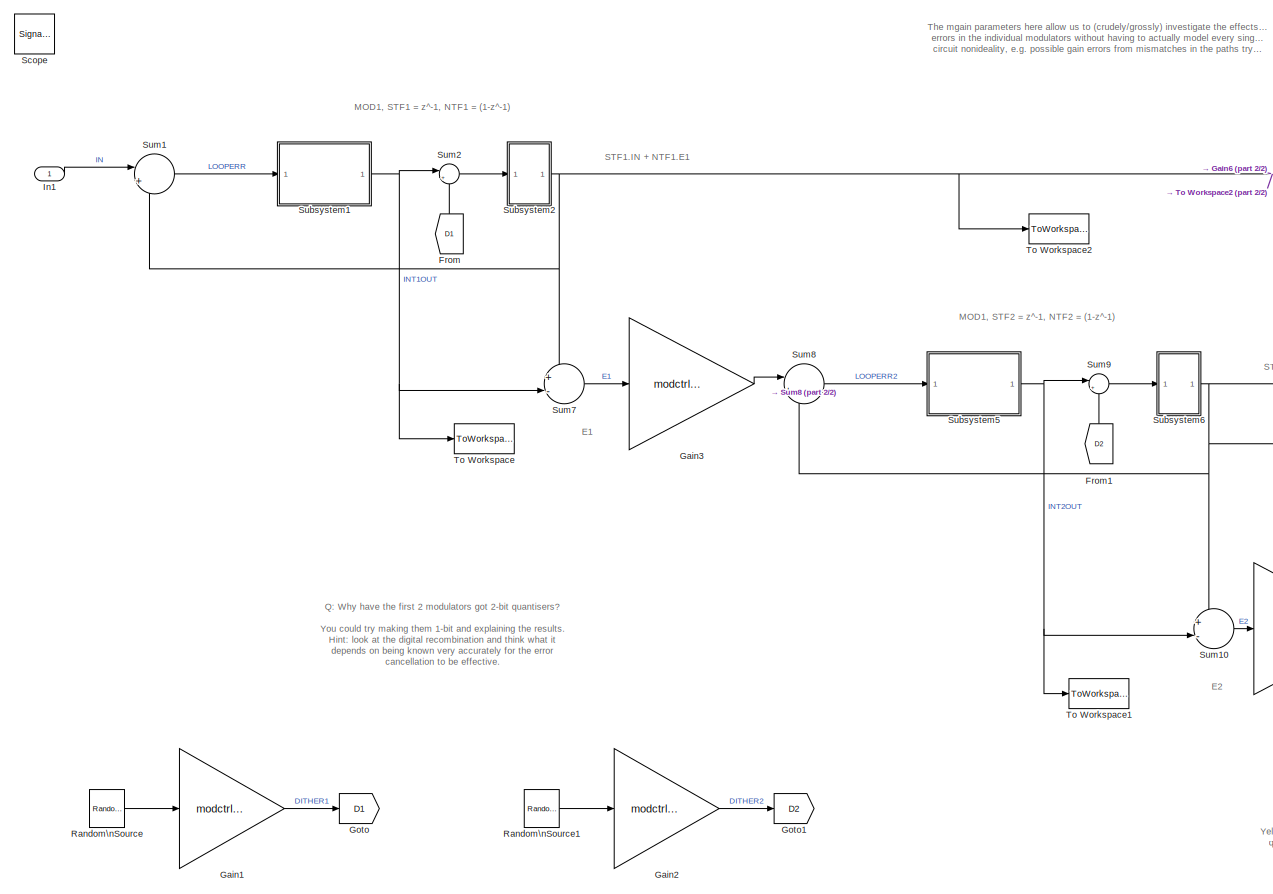
[diagram: root canvas - part 1/2, left side, full height]
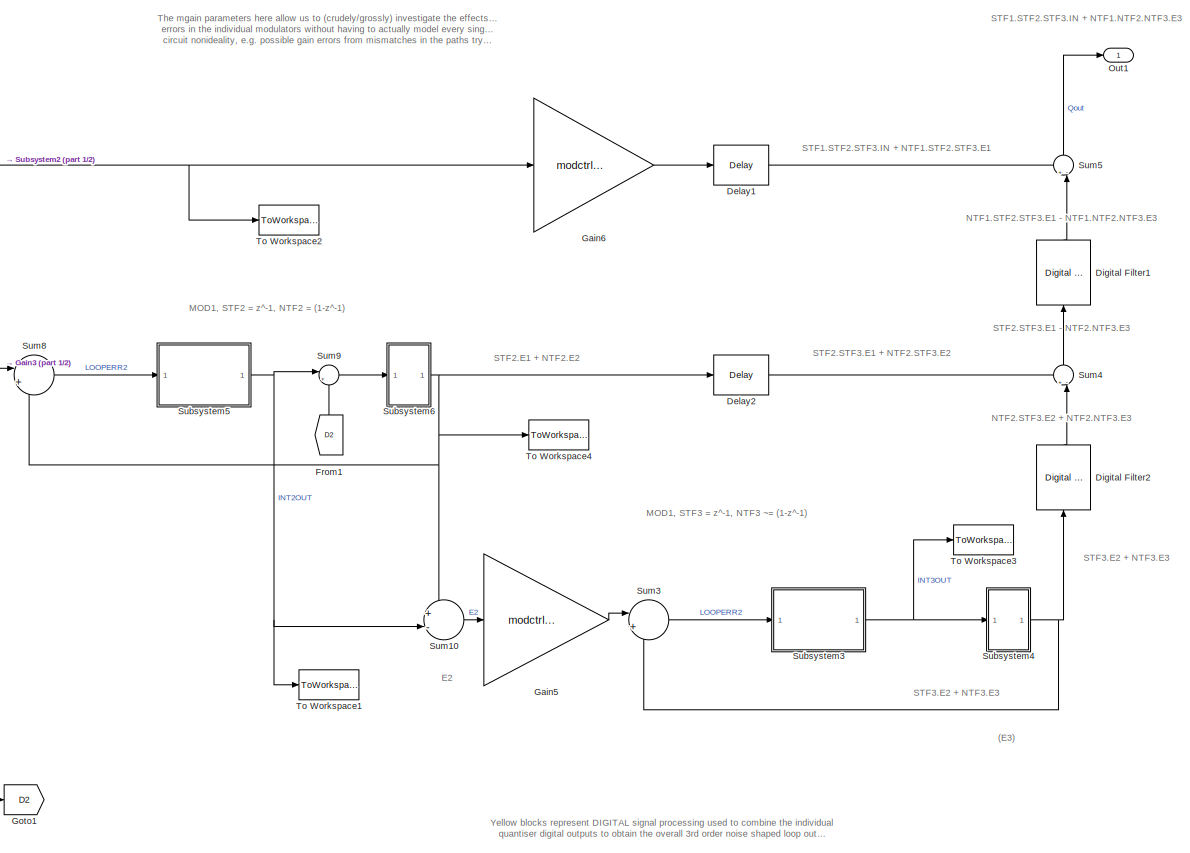
[diagram: root canvas - part 2/2, right side, full height]
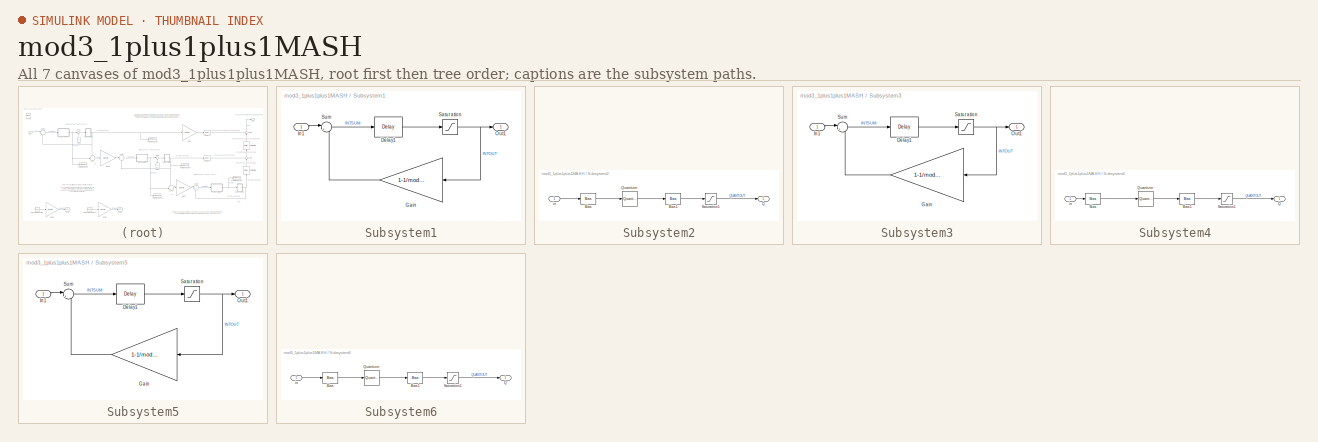
[diagram: thumbnail index - all 7 canvases of the model, root first then tree order]
MODEL mod3_1plus1plus1MASH
KIND model
BLOCK [Reference] Delay1  REF=dspsigops/Delay
  AttributesFormatString = STF2.STF3
  InputProcessing = Columns as channels (frame based)
  Ports = [1, 1]
  SID = 189
  SourceBlock = dspsigops/Delay
  SourceType = Delay
  UserData = DataTag0
  UserDataPersistent = on
  delay = 2
  dif_ic_for_ch = off
  dif_ic_for_dly = off
  dly_unit = Samples
  ic = 0
  ic_detail = off
  reset_popup = None
BLOCK [Reference] Delay2  REF=dspsigops/Delay
  AttributesFormatString = STF3
  InputProcessing = Columns as channels (frame based)
  Ports = [1, 1]
  SID = 184
  SourceBlock = dspsigops/Delay
  SourceType = Delay
  UserData = DataTag1
  UserDataPersistent = on
  delay = 1
  dif_ic_for_ch = off
  dif_ic_for_dly = off
  dly_unit = Samples
  ic = 0
  ic_detail = off
  reset_popup = None
BLOCK [Reference] Digital Filter1  REF=dsparch4/Digital Filter
  AllPoleFiltStruct = Direct form
  AttributesFormatString = NTF1 = (1-z^-1)
  BiQuadCoeffs = [1 0.3 0.4 1 0.1 0.2]
  CoeffSource = Specify via dialog
  DenCoeffs = [1 0.1]
  FIRFiltStruct = Direct form
  FiltPerSampPopup = One filter per frame
  FilterSource = Specify via dialog
  IC = 0
  ICden = 0
  ICnum = 0
  IIRFiltStruct = Direct form II transposed
  InputProcessing = Columns as channels (frame based)
  LatticeCoeffs = [0.2 0.4]
  LockScale = off
  NumCoeffs = [1 -1]
  Ports = [1, 1]
  SID = 190
  ScaleValues = 1
  SourceBlock = dsparch4/Digital Filter
  SourceType = Digital Filter
  TypePopup = FIR (all zeros)
  UserData = DataTag2
  UserDataPersistent = on
  accumFracLength = 30
  accumMode = Same as product output
  accumWordLength = 32
  additionalParams = off
  allowOverrides = on
  denIgnore = on
  dfiltObjectName = dfilt.dffir([1 2 1])
  firstCoeffFracLength = 15
  firstCoeffMode = Same word length as input
  firstCoeffWordLength = 16
  memoryFracLength = 15
  memoryMode = Same as accumulator
  memoryWordLength = 16
  multiplicandFracLength = 30
  multiplicandMode = Same as output
  multiplicandWordLength = 32
  outputFracLength = 15
  outputMode = Same as accumulator
  outputWordLength = 16
  overflowMode = off
  prodOutputFracLength = 30
  prodOutputMode = Same as input
  prodOutputWordLength = 32
  roundingMode = Floor
  scaleValueFracLength = 14
  secondCoeffFracLength = 15
  secondCoeffMode = Same as numerator
  secondCoeffWordLength = 16
  showAcc = off
  showCoeff = off
  showMem = off
  showMpy = off
  showOut = off
  stageIOMode = Same as input
  stageIOWordLength = 16
  stageInFracLength = 15
  stageOutFracLength = 15
  tapSumFracLength = 30
  tapSumMode = Same as input
  tapSumWordLength = 32
  thirdCoeffFracLength = 15
  thirdCoeffMode = Same as input
  thirdCoeffWordLength = 16
BLOCK [Reference] Digital Filter2  REF=dsparch4/Digital Filter
  AllPoleFiltStruct = Direct form
  AttributesFormatString = NTF2 = (1-z^-1)
  BiQuadCoeffs = [1 0.3 0.4 1 0.1 0.2]
  CoeffSource = Specify via dialog
  DenCoeffs = [1 0.1]
  FIRFiltStruct = Direct form
  FiltPerSampPopup = One filter per frame
  FilterSource = Specify via dialog
  IC = 0
  ICden = 0
  ICnum = 0
  IIRFiltStruct = Direct form II transposed
  InputProcessing = Columns as channels (frame based)
  LatticeCoeffs = [0.2 0.4]
  LockScale = off
  NumCoeffs = [1 -1]
  Ports = [1, 1]
  SID = 183
  ScaleValues = 1
  SourceBlock = dsparch4/Digital Filter
  SourceType = Digital Filter
  TypePopup = FIR (all zeros)
  UserData = DataTag3
  UserDataPersistent = on
  accumFracLength = 30
  accumMode = Same as product output
  accumWordLength = 32
  additionalParams = off
  allowOverrides = on
  denIgnore = on
  dfiltObjectName = dfilt.dffir([1 2 1])
  firstCoeffFracLength = 15
  firstCoeffMode = Same word length as input
  firstCoeffWordLength = 16
  memoryFracLength = 15
  memoryMode = Same as accumulator
  memoryWordLength = 16
  multiplicandFracLength = 30
  multiplicandMode = Same as output
  multiplicandWordLength = 32
  outputFracLength = 15
  outputMode = Same as accumulator
  outputWordLength = 16
  overflowMode = off
  prodOutputFracLength = 30
  prodOutputMode = Same as input
  prodOutputWordLength = 32
  roundingMode = Floor
  scaleValueFracLength = 14
  secondCoeffFracLength = 15
  secondCoeffMode = Same as numerator
  secondCoeffWordLength = 16
  showAcc = off
  showCoeff = off
  showMem = off
  showMpy = off
  showOut = off
  stageIOMode = Same as input
  stageIOWordLength = 16
  stageInFracLength = 15
  stageOutFracLength = 15
  tapSumFracLength = 30
  tapSumMode = Same as input
  tapSumWordLength = 32
  thirdCoeffFracLength = 15
  thirdCoeffMode = Same as input
  thirdCoeffWordLength = 16
BLOCK [From] From
  GotoTag = D1
  SID = 207
BLOCK [From] From1
  GotoTag = D2
  SID = 208
BLOCK [Gain] Gain1
  AttributesFormatString = Dither level adjust
  Gain = modctrl.dgain1
  OutDataTypeStr = Inherit: Inherit via internal rule
  ParamDataTypeStr = Inherit: Inherit via internal rule
  SID = 29
  SaturateOnIntegerOverflow = off
BLOCK [Gain] Gain2
  AttributesFormatString = Dither level adjust
  Gain = modctrl.dgain2
  OutDataTypeStr = Inherit: Inherit via internal rule
  ParamDataTypeStr = Inherit: Inherit via internal rule
  SID = 110
  SaturateOnIntegerOverflow = off
BLOCK [Gain] Gain3
  Gain = modctrl.mgain2
  OutDataTypeStr = Inherit: Inherit via internal rule
  ParamDataTypeStr = Inherit: Inherit via internal rule
  SID = 217
  SaturateOnIntegerOverflow = off
BLOCK [Gain] Gain5
  Gain = modctrl.mgain3
  OutDataTypeStr = Inherit: Inherit via internal rule
  ParamDataTypeStr = Inherit: Inherit via internal rule
  SID = 218
  SaturateOnIntegerOverflow = off
BLOCK [Gain] Gain6
  Gain = modctrl.mgain1
  OutDataTypeStr = Inherit: Inherit via internal rule
  ParamDataTypeStr = Inherit: Inherit via internal rule
  SID = 188
  SaturateOnIntegerOverflow = off
BLOCK [Goto] Goto
  GotoTag = D1
  SID = 205
BLOCK [Goto] Goto1
  GotoTag = D2
  SID = 206
BLOCK [Inport] In1
  IconDisplay = Port number
  SID = 73
BLOCK [Outport] Out1
  IconDisplay = Port number
  SID = 74
BLOCK [Reference] Random\nSource  REF=dspsrcs4/Random\nSource
  AttributesFormatString = Dither source
  CltLength = 12
  DataType = Double
  IsInherit = off
  MaxVal = 1
  MeanVal = 0
  MinVal = -1
  NormMethod = Ziggurat
  OutComplex = Real
  Ports = [0, 1]
  RepMode = Not repeatable
  SID = 25
  SampFrame = 1
  SampMode = Discrete
  SampTime = 1/Fs
  SourceBlock = dspsrcs4/Random\nSource
  SourceType = Random Source
  SrcType = Uniform
  UserData = DataTag4
  UserDataPersistent = on
  VarVal = 1
  rawSeed = 1
BLOCK [Reference] Random\nSource1  REF=dspsrcs4/Random\nSource
  AttributesFormatString = Dither source
  CltLength = 12
  DataType = Double
  IsInherit = off
  MaxVal = 1
  MeanVal = 0
  MinVal = -1
  NormMethod = Ziggurat
  OutComplex = Real
  Ports = [0, 1]
  RepMode = Not repeatable
  SID = 111
  SampFrame = 1
  SampMode = Discrete
  SampTime = 1/Fs
  SourceBlock = dspsrcs4/Random\nSource
  SourceType = Random Source
  SrcType = Uniform
  UserData = DataTag5
  UserDataPersistent = on
  VarVal = 1
  rawSeed = 1
BLOCK [SignalViewerScope] Scope
  IOType = viewer
  MaxDataPoints = 7500
  NumInputPorts = 4
  Ports = []
  RefreshTime = 0.035000
  SID = 216
  ShowDataMarkers = off
  ShowLegends = off
  YMax = 1.25~0.75~1.5~7.5
  YMin = -1.25~-0.75~-1.5~-7.5
  ZoomMode = xonly
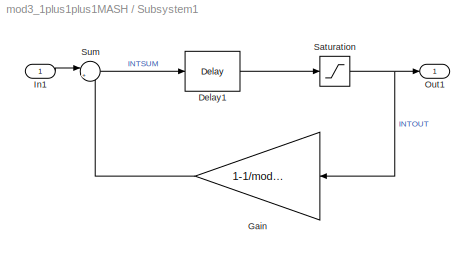
BLOCK [SubSystem] Subsystem1
  AttributesFormatString = Leaky delaying int
  FunctionWithSeparateData = off
  MaskHideContents = off
  MinAlgLoopOccurrences = off
  Opaque = off
  Ports = [1, 1]
  PropExecContextOutsideSubsystem = off
  RTWSystemCode = Auto
  RequestExecContextInheritance = off
  SID = 129
BLOCK [Reference] Subsystem1/Delay1  REF=dspsigops/Delay
  InputProcessing = Inherited (this choice will be removed - see release notes)
  Ports = [1, 1]
  SID = 131
  SourceBlock = dspsigops/Delay
  SourceType = Delay
  UserData = DataTag6
  UserDataPersistent = on
  delay = 1
  dif_ic_for_ch = off
  dif_ic_for_dly = off
  dly_unit = Samples
  ic = 0
  ic_detail = off
  reset_popup = None
BLOCK [Gain] Subsystem1/Gain
  AttributesFormatString = Integrator leakage
  Gain = 1-1/modctrl.igain1
  OutDataTypeStr = Inherit: Inherit via internal rule
  ParamDataTypeStr = Inherit: Inherit via internal rule
  SID = 132
  SaturateOnIntegerOverflow = off
BLOCK [Inport] Subsystem1/In1
  IconDisplay = Port number
  SID = 130
BLOCK [Outport] Subsystem1/Out1
  IconDisplay = Port number
  SID = 135
BLOCK [Saturate] Subsystem1/Saturation
  InputPortMap = u0
  LowerLimit = -(modctrl.isat1)
  Ports = [1, 1]
  SID = 133
  UpperLimit = modctrl.isat1
BLOCK [Sum] Subsystem1/Sum
  AttributesFormatString = Integrator summer
  IconShape = round
  InputSameDT = off
  Inputs = |++
  OutDataTypeStr = Inherit: Inherit via internal rule
  Ports = [2, 1]
  SID = 134
  SaturateOnIntegerOverflow = off
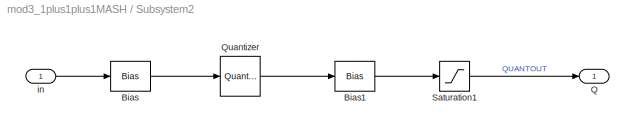
BLOCK [SubSystem] Subsystem2
  AttributesFormatString = 2-bit quantiser
  FunctionWithSeparateData = off
  MaskHideContents = off
  MinAlgLoopOccurrences = off
  Opaque = off
  Ports = [1, 1]
  PropExecContextOutsideSubsystem = off
  RTWSystemCode = Auto
  RequestExecContextInheritance = off
  SID = 196
BLOCK [Bias] Subsystem2/Bias
  AttributesFormatString = Need offset to give\\nMID-RISE quantiser
  Bias = 1/3
  SID = 198
  SaturateOnIntegerOverflow = off
BLOCK [Bias] Subsystem2/Bias1
  Bias = -1/3
  SID = 199
  SaturateOnIntegerOverflow = off
BLOCK [Outport] Subsystem2/Q
  IconDisplay = Port number
  SID = 203
BLOCK [Quantizer] Subsystem2/Quantizer
  LinearizeAsGain = off
  QuantizationInterval = 2/3
  SID = 201
BLOCK [Saturate] Subsystem2/Saturation1
  AttributesFormatString = Limit quantiser\\noutput to +/-1
  InputPortMap = u0
  LowerLimit = -1
  Ports = [1, 1]
  SID = 202
  UpperLimit = 1
BLOCK [Inport] Subsystem2/in
  IconDisplay = Port number
  SID = 197
BLOCK [SubSystem] Subsystem3
  AttributesFormatString = Leaky delaying int
  FunctionWithSeparateData = off
  MaskHideContents = off
  MinAlgLoopOccurrences = off
  Opaque = off
  Ports = [1, 1]
  PropExecContextOutsideSubsystem = off
  RTWSystemCode = Auto
  RequestExecContextInheritance = off
  SID = 165
BLOCK [Reference] Subsystem3/Delay1  REF=dspsigops/Delay
  InputProcessing = Inherited (this choice will be removed - see release notes)
  Ports = [1, 1]
  SID = 167
  SourceBlock = dspsigops/Delay
  SourceType = Delay
  UserData = DataTag7
  UserDataPersistent = on
  delay = 1
  dif_ic_for_ch = off
  dif_ic_for_dly = off
  dly_unit = Samples
  ic = 0
  ic_detail = off
  reset_popup = None
BLOCK [Gain] Subsystem3/Gain
  AttributesFormatString = Integrator leakage
  Gain = 1-1/modctrl.igain3
  OutDataTypeStr = Inherit: Inherit via internal rule
  ParamDataTypeStr = Inherit: Inherit via internal rule
  SID = 168
  SaturateOnIntegerOverflow = off
BLOCK [Inport] Subsystem3/In1
  IconDisplay = Port number
  SID = 166
BLOCK [Outport] Subsystem3/Out1
  IconDisplay = Port number
  SID = 171
BLOCK [Saturate] Subsystem3/Saturation
  InputPortMap = u0
  LowerLimit = -(modctrl.isat3)
  Ports = [1, 1]
  SID = 169
  UpperLimit = modctrl.isat3
BLOCK [Sum] Subsystem3/Sum
  AttributesFormatString = Integrator summer
  IconShape = round
  InputSameDT = off
  Inputs = |++
  OutDataTypeStr = Inherit: Inherit via internal rule
  Ports = [2, 1]
  SID = 170
  SaturateOnIntegerOverflow = off
BLOCK [SubSystem] Subsystem4
  AttributesFormatString = 1-bit quantiser
  FunctionWithSeparateData = off
  MaskHideContents = off
  MinAlgLoopOccurrences = off
  Opaque = off
  Ports = [1, 1]
  PropExecContextOutsideSubsystem = off
  RTWSystemCode = Auto
  RequestExecContextInheritance = off
  SID = 172
BLOCK [Bias] Subsystem4/Bias
  AttributesFormatString = Need offset to give\\nMID-RISE quantiser
  Bias = 1
  SID = 174
  SaturateOnIntegerOverflow = off
BLOCK [Bias] Subsystem4/Bias1
  Bias = -1
  SID = 175
  SaturateOnIntegerOverflow = off
BLOCK [Outport] Subsystem4/Q
  IconDisplay = Port number
  SID = 179
BLOCK [Quantizer] Subsystem4/Quantizer
  LinearizeAsGain = off
  QuantizationInterval = 2
  SID = 177
BLOCK [Saturate] Subsystem4/Saturation1
  AttributesFormatString = Limit quantiser\\noutput to +/-1
  InputPortMap = u0
  LowerLimit = -1
  Ports = [1, 1]
  SID = 178
  UpperLimit = 1
BLOCK [Inport] Subsystem4/in
  IconDisplay = Port number
  SID = 173
BLOCK [SubSystem] Subsystem5
  AttributesFormatString = Leaky delaying int
  FunctionWithSeparateData = off
  MaskHideContents = off
  MinAlgLoopOccurrences = off
  Opaque = off
  Ports = [1, 1]
  PropExecContextOutsideSubsystem = off
  RTWSystemCode = Auto
  RequestExecContextInheritance = off
  SID = 147
BLOCK [Reference] Subsystem5/Delay1  REF=dspsigops/Delay
  InputProcessing = Inherited (this choice will be removed - see release notes)
  Ports = [1, 1]
  SID = 149
  SourceBlock = dspsigops/Delay
  SourceType = Delay
  UserData = DataTag8
  UserDataPersistent = on
  delay = 1
  dif_ic_for_ch = off
  dif_ic_for_dly = off
  dly_unit = Samples
  ic = 0
  ic_detail = off
  reset_popup = None
BLOCK [Gain] Subsystem5/Gain
  AttributesFormatString = Integrator leakage
  Gain = 1-1/modctrl.igain2
  OutDataTypeStr = Inherit: Inherit via internal rule
  ParamDataTypeStr = Inherit: Inherit via internal rule
  SID = 150
  SaturateOnIntegerOverflow = off
BLOCK [Inport] Subsystem5/In1
  IconDisplay = Port number
  SID = 148
BLOCK [Outport] Subsystem5/Out1
  IconDisplay = Port number
  SID = 153
BLOCK [Saturate] Subsystem5/Saturation
  InputPortMap = u0
  LowerLimit = -(modctrl.isat2)
  Ports = [1, 1]
  SID = 151
  UpperLimit = modctrl.isat2
BLOCK [Sum] Subsystem5/Sum
  AttributesFormatString = Integrator summer
  IconShape = round
  InputSameDT = off
  Inputs = |++
  OutDataTypeStr = Inherit: Inherit via internal rule
  Ports = [2, 1]
  SID = 152
  SaturateOnIntegerOverflow = off
BLOCK [SubSystem] Subsystem6
  AttributesFormatString = 2-bit quantiser
  FunctionWithSeparateData = off
  MaskHideContents = off
  MinAlgLoopOccurrences = off
  Opaque = off
  Ports = [1, 1]
  PropExecContextOutsideSubsystem = off
  RTWSystemCode = Auto
  RequestExecContextInheritance = off
  SID = 209
BLOCK [Bias] Subsystem6/Bias
  AttributesFormatString = Need offset to give\\nMID-RISE quantiser
  Bias = 1/3
  SID = 211
  SaturateOnIntegerOverflow = off
BLOCK [Bias] Subsystem6/Bias1
  Bias = -1/3
  SID = 212
  SaturateOnIntegerOverflow = off
BLOCK [Outport] Subsystem6/Q
  IconDisplay = Port number
  SID = 215
BLOCK [Quantizer] Subsystem6/Quantizer
  LinearizeAsGain = off
  QuantizationInterval = 2/3
  SID = 213
BLOCK [Saturate] Subsystem6/Saturation1
  AttributesFormatString = Limit quantiser\\noutput to +/-1
  InputPortMap = u0
  LowerLimit = -1
  Ports = [1, 1]
  SID = 214
  UpperLimit = 1
BLOCK [Inport] Subsystem6/in
  IconDisplay = Port number
  SID = 210
BLOCK [Sum] Sum1
  AttributesFormatString = Modulator input\\nloop servo error (input - fbk)
  IconShape = round
  InputSameDT = off
  Inputs = |+-
  OutDataTypeStr = Inherit: Inherit via internal rule
  Ports = [2, 1]
  SID = 136
  SaturateOnIntegerOverflow = off
BLOCK [Sum] Sum10
  IconShape = round
  InputSameDT = off
  Inputs = +-|
  OutDataTypeStr = Inherit: Inherit via internal rule
  Ports = [2, 1]
  SID = 164
  SaturateOnIntegerOverflow = off
BLOCK [Sum] Sum2
  IconShape = round
  InputSameDT = off
  Inputs = |++
  OutDataTypeStr = Inherit: Inherit via internal rule
  Ports = [2, 1]
  SID = 137
  SaturateOnIntegerOverflow = off
BLOCK [Sum] Sum3
  AttributesFormatString = Modulator input\\nloop servo error (input - fbk)
  IconShape = round
  InputSameDT = off
  Inputs = |+-
  OutDataTypeStr = Inherit: Inherit via internal rule
  Ports = [2, 1]
  SID = 180
  SaturateOnIntegerOverflow = off
BLOCK [Sum] Sum4
  IconShape = round
  InputSameDT = off
  Inputs = +-|
  OutDataTypeStr = Inherit: Inherit via internal rule
  Ports = [2, 1]
  SID = 185
  SaturateOnIntegerOverflow = off
BLOCK [Sum] Sum5
  IconShape = round
  InputSameDT = off
  Inputs = +-|
  OutDataTypeStr = Inherit: Inherit via internal rule
  Ports = [2, 1]
  SID = 191
  SaturateOnIntegerOverflow = off
BLOCK [Sum] Sum7
  IconShape = round
  InputSameDT = off
  Inputs = +-|
  OutDataTypeStr = Inherit: Inherit via internal rule
  Ports = [2, 1]
  SID = 146
  SaturateOnIntegerOverflow = off
BLOCK [Sum] Sum8
  AttributesFormatString = Modulator input\\nloop servo error (input - fbk)
  IconShape = round
  InputSameDT = off
  Inputs = |+-
  OutDataTypeStr = Inherit: Inherit via internal rule
  Ports = [2, 1]
  SID = 162
  SaturateOnIntegerOverflow = off
BLOCK [Sum] Sum9
  IconShape = round
  InputSameDT = off
  Inputs = |++
  OutDataTypeStr = Inherit: Inherit via internal rule
  Ports = [2, 1]
  SID = 163
  SaturateOnIntegerOverflow = off
BLOCK [ToWorkspace] To Workspace
  MaxDataPoints = inf
  Ports = [1]
  SID = 219
  SampleTime = -1
  VariableName = INT1OUT
BLOCK [ToWorkspace] To Workspace1
  MaxDataPoints = inf
  Ports = [1]
  SID = 220
  SampleTime = -1
  VariableName = INT2OUT
BLOCK [ToWorkspace] To Workspace2
  MaxDataPoints = inf
  Ports = [1]
  SID = 224
  SampleTime = -1
  VariableName = Qout1
BLOCK [ToWorkspace] To Workspace3
  MaxDataPoints = inf
  Ports = [1]
  SID = 222
  SampleTime = -1
  VariableName = INT3OUT
BLOCK [ToWorkspace] To Workspace4
  MaxDataPoints = inf
  Ports = [1]
  SID = 244
  SampleTime = -1
  VariableName = Qout2
ANNOTATION (root): (E3)
ANNOTATION (root): E1
ANNOTATION (root): E2
ANNOTATION (root): MOD1, STF1 = z^-1, NTF1 = (1-z^-1)
ANNOTATION (root): MOD1, STF2 = z^-1, NTF2 = (1-z^-1)
ANNOTATION (root): MOD1, STF3 = z^-1, NTF3 ~= (1-z^-1)
ANNOTATION (root): NTF1.STF2.STF3.E1 - NTF1.NTF2.NTF3.E3
ANNOTATION (root): NTF2.STF3.E2 + NTF2.NTF3.E3
ANNOTATION (root): Q: Why have the first 2 modulators got 2-bit quantisers?\n\nYou could try making them 1-bit and explaining the results.\nHint: look at the digital recombination and think what it\ndepends on being known very accurately for the error\ncancellation to be effective.\nWhat might not be well defined with 1-bit quantisers?
ANNOTATION (root): STF1.IN + NTF1.E1
ANNOTATION (root): STF1.STF2.STF3.IN + NTF1.NTF2.NTF3.E3
ANNOTATION (root): STF1.STF2.STF3.IN + NTF1.STF2.STF3.E1
ANNOTATION (root): STF2.E1 + NTF2.E2
ANNOTATION (root): STF2.STF3.E1 + NTF2.STF3.E2
ANNOTATION (root): STF2.STF3.E1 - NTF2.NTF3.E3
ANNOTATION (root): STF3.E2 + NTF3.E3
ANNOTATION (root): The mgain parameters here allow us to (crudely/grossly) investigate the effects of signal path gain\nerrors in the individual modulators without having to actually model every single path and \ncircuit nonideality, e.g. possible gain errors from mismatches in the paths trying to compute E1, E2
ANNOTATION (root): Yellow blocks represent DIGITAL signal processing used to combine the individual\nquantiser digital outputs to obtain the overall 3rd order noise shaped loop output.
LINE Delay1:1 -> Sum5:1
LINE Delay2:1 -> Sum4:1
LINE Digital Filter1:1 -> Sum5:2
LINE Digital Filter2:1 -> Sum4:2
LINE From1:1 -> Sum9:2
LINE From:1 -> Sum2:2
LINE Gain1:1 -> Goto:1
LINE Gain2:1 -> Goto1:1
LINE Gain3:1 -> Sum8:1
LINE Gain5:1 -> Sum3:1
LINE Gain6:1 -> Delay1:1
LINE In1:1 -> Sum1:1
LINE Random\nSource1:1 -> Gain2:1
LINE Random\nSource:1 -> Gain1:1
LINE Subsystem1/Delay1:1 -> Subsystem1/Saturation:1
LINE Subsystem1/Gain:1 -> Subsystem1/Sum:2
LINE Subsystem1/In1:1 -> Subsystem1/Sum:1
NET Subsystem1/Saturation:1 -> Subsystem1/Gain:1, Subsystem1/Out1:1
LINE Subsystem1/Sum:1 -> Subsystem1/Delay1:1
NET Subsystem1:1 -> Sum2:1, Sum7:2, To Workspace:1
LINE Subsystem2/Bias1:1 -> Subsystem2/Saturation1:1
LINE Subsystem2/Bias:1 -> Subsystem2/Quantizer:1
LINE Subsystem2/Quantizer:1 -> Subsystem2/Bias1:1
LINE Subsystem2/Saturation1:1 -> Subsystem2/Q:1
LINE Subsystem2/in:1 -> Subsystem2/Bias:1
NET Subsystem2:1 -> Gain6:1, Sum1:2, Sum7:1, To Workspace2:1
LINE Subsystem3/Delay1:1 -> Subsystem3/Saturation:1
LINE Subsystem3/Gain:1 -> Subsystem3/Sum:2
LINE Subsystem3/In1:1 -> Subsystem3/Sum:1
NET Subsystem3/Saturation:1 -> Subsystem3/Gain:1, Subsystem3/Out1:1
LINE Subsystem3/Sum:1 -> Subsystem3/Delay1:1
NET Subsystem3:1 -> Subsystem4:1, To Workspace3:1
LINE Subsystem4/Bias1:1 -> Subsystem4/Saturation1:1
LINE Subsystem4/Bias:1 -> Subsystem4/Quantizer:1
LINE Subsystem4/Quantizer:1 -> Subsystem4/Bias1:1
LINE Subsystem4/Saturation1:1 -> Subsystem4/Q:1
LINE Subsystem4/in:1 -> Subsystem4/Bias:1
NET Subsystem4:1 -> Digital Filter2:1, Sum3:2
LINE Subsystem5/Delay1:1 -> Subsystem5/Saturation:1
LINE Subsystem5/Gain:1 -> Subsystem5/Sum:2
LINE Subsystem5/In1:1 -> Subsystem5/Sum:1
NET Subsystem5/Saturation:1 -> Subsystem5/Gain:1, Subsystem5/Out1:1
LINE Subsystem5/Sum:1 -> Subsystem5/Delay1:1
NET Subsystem5:1 -> Sum10:2, Sum9:1, To Workspace1:1
LINE Subsystem6/Bias1:1 -> Subsystem6/Saturation1:1
LINE Subsystem6/Bias:1 -> Subsystem6/Quantizer:1
LINE Subsystem6/Quantizer:1 -> Subsystem6/Bias1:1
LINE Subsystem6/Saturation1:1 -> Subsystem6/Q:1
LINE Subsystem6/in:1 -> Subsystem6/Bias:1
NET Subsystem6:1 -> Delay2:1, Sum10:1, Sum8:2, To Workspace4:1
LINE Sum10:1 -> Gain5:1
LINE Sum1:1 -> Subsystem1:1
LINE Sum2:1 -> Subsystem2:1
LINE Sum3:1 -> Subsystem3:1
LINE Sum4:1 -> Digital Filter1:1
LINE Sum5:1 -> Out1:1
LINE Sum7:1 -> Gain3:1
LINE Sum8:1 -> Subsystem5:1
LINE Sum9:1 -> Subsystem6:1
note: NET lines group one-source signal fan-out (src -> all destinations, sorted); 1:1 wires keep LINE
